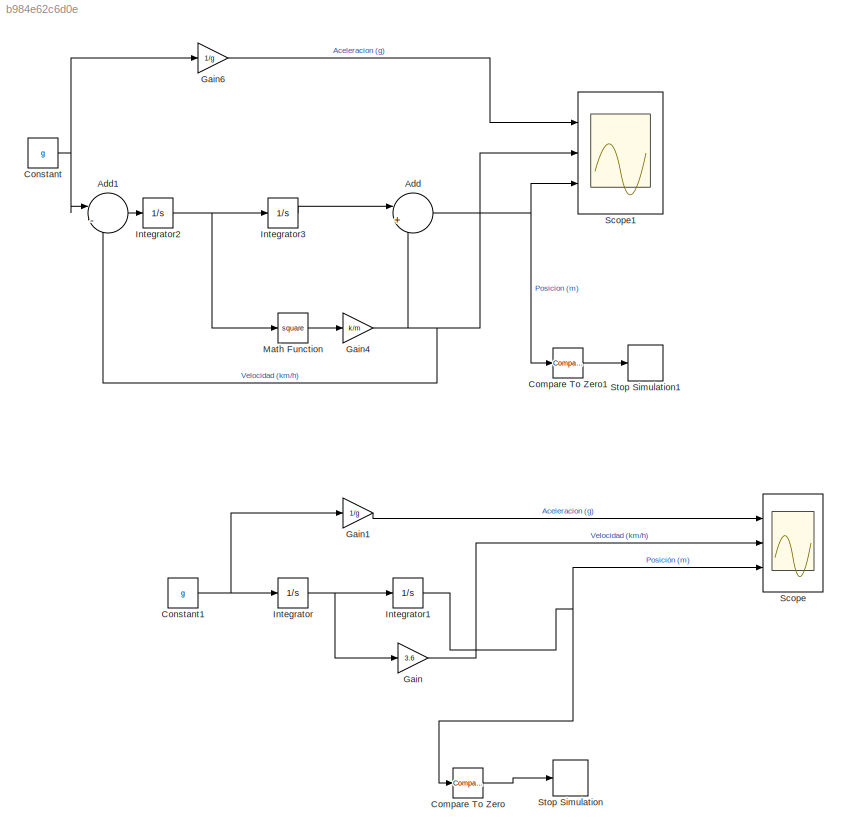
MODEL slx_b984e62c6d0e
KIND model
BLOCK [Sum] Add
  IconShape = round
  InputSameDT = off
  Inputs = |+-
  OutDataTypeStr = Inherit: Inherit via internal rule
  Ports = [2, 1]
  SaturateOnIntegerOverflow = off
BLOCK [Sum] Add1
  IconShape = round
  InputSameDT = off
  Inputs = |-+
  OutDataTypeStr = Inherit: Inherit via internal rule
  Ports = [2, 1]
  SaturateOnIntegerOverflow = off
BLOCK [Reference] Compare To Zero  REF=simulink/Logic and Bit
Operations/Compare
To Zero
  OutDataTypeStr = boolean
  Ports = [1, 1]
  SourceBlock = simulink/Logic and Bit\nOperations/Compare\nTo Zero
  SourceType = Compare To Zero
  ZeroCross = on
  relop = ==
BLOCK [Reference] Compare To Zero1  REF=simulink/Logic and Bit
Operations/Compare
To Zero
  OutDataTypeStr = boolean
  Ports = [1, 1]
  SourceBlock = simulink/Logic and Bit\nOperations/Compare\nTo Zero
  SourceType = Compare To Zero
  ZeroCross = on
  relop = ==
BLOCK [Constant] Constant
  Value = g
BLOCK [Constant] Constant1
  Value = g
BLOCK [Gain] Gain
  Gain = 3.6
  OutDataTypeStr = Inherit: Inherit via internal rule
  ParamDataTypeStr = Inherit: Inherit via internal rule
  SaturateOnIntegerOverflow = off
BLOCK [Gain] Gain1
  Gain = 1/g
  OutDataTypeStr = Inherit: Inherit via internal rule
  ParamDataTypeStr = Inherit: Inherit via internal rule
  SaturateOnIntegerOverflow = off
BLOCK [Gain] Gain4
  Gain = k/m
  OutDataTypeStr = Inherit: Inherit via internal rule
  ParamDataTypeStr = Inherit: Inherit via internal rule
  SaturateOnIntegerOverflow = off
BLOCK [Gain] Gain6
  Gain = 1/g
  OutDataTypeStr = Inherit: Inherit via internal rule
  ParamDataTypeStr = Inherit: Inherit via internal rule
  SaturateOnIntegerOverflow = off
BLOCK [Integrator] Integrator
  Ports = [1, 1]
BLOCK [Integrator] Integrator1
  InitialCondition = h_inicial
  Ports = [1, 1]
BLOCK [Integrator] Integrator2
  Ports = [1, 1]
BLOCK [Integrator] Integrator3
  InitialCondition = h_inicial
  Ports = [1, 1]
BLOCK [Math] Math Function
  Operator = square
  Ports = [1, 1]
BLOCK [Scope] Scope
  DataFormat = StructureWithTime
  Floating = off
  LegendLocations = 0.88348     0.91519    0.094436     0.02999\n0.87616     0.60546     0.10176     0.02999\n0.89373     0.29572    0.084187     0.02999
  NumInputPorts = 3
  Ports = [3]
  SampleTime = 0
  ShowLegends = on
  YMax = 5~5~5
  YMin = -5~-5~-5
BLOCK [Scope] Scope1
  DataFormat = StructureWithTime
  Floating = off
  LegendLocations = 0.88348     0.91519    0.094436     0.02999\n0.87616     0.60546     0.10176     0.02999\n0.89373     0.29572    0.084187     0.02999
  NumInputPorts = 3
  Ports = [3]
  SampleTime = 0
  SaveName = ScopeData1
  ShowLegends = on
  TimeRange = 6
  YMax = 2~6e+183~9.999999999999998e+182
  YMin = 0~0~-6e+183
BLOCK [Stop] Stop Simulation
BLOCK [Stop] Stop Simulation1
LINE Add1:1 -> Integrator2:1
NET Add:1 -> Compare To Zero1:1, Scope1:3
LINE Compare To Zero1:1 -> Stop Simulation1:1
LINE Compare To Zero:1 -> Stop Simulation:1
NET Constant1:1 -> Gain1:1, Integrator:1
NET Constant:1 -> Add1:1, Gain6:1
LINE Gain1:1 -> Scope:1
NET Gain4:1 -> Add1:2, Add:2, Scope1:2
LINE Gain6:1 -> Scope1:1
LINE Gain:1 -> Scope:2
NET Integrator1:1 -> Compare To Zero:1, Scope:3
NET Integrator2:1 -> Integrator3:1, Math Function:1
LINE Integrator3:1 -> Add:1
NET Integrator:1 -> Gain:1, Integrator1:1
LINE Math Function:1 -> Gain4:1
note: NET lines group one-source signal fan-out (src -> all destinations, sorted); 1:1 wires keep LINE
